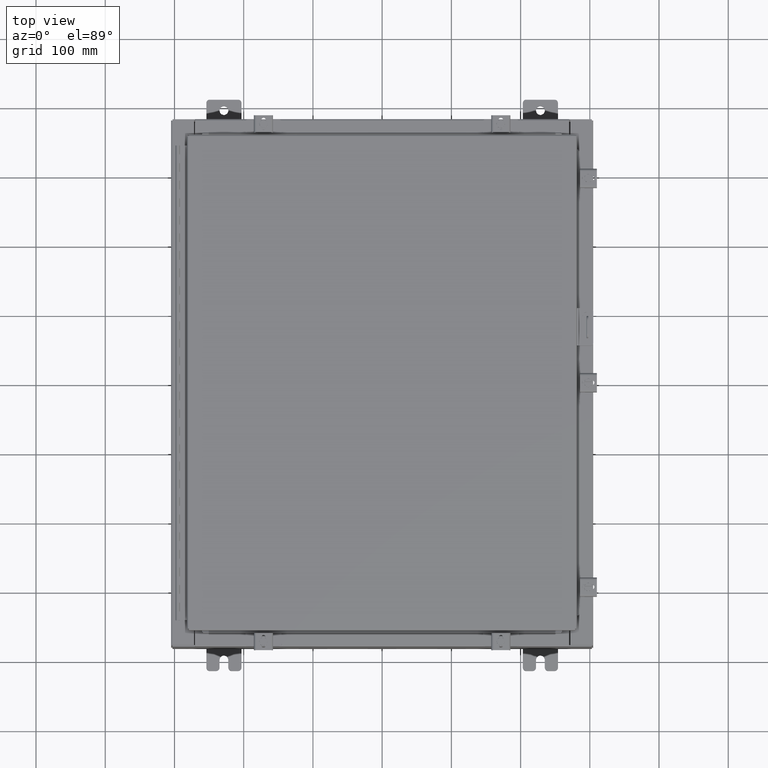
[diagram: clean part render]
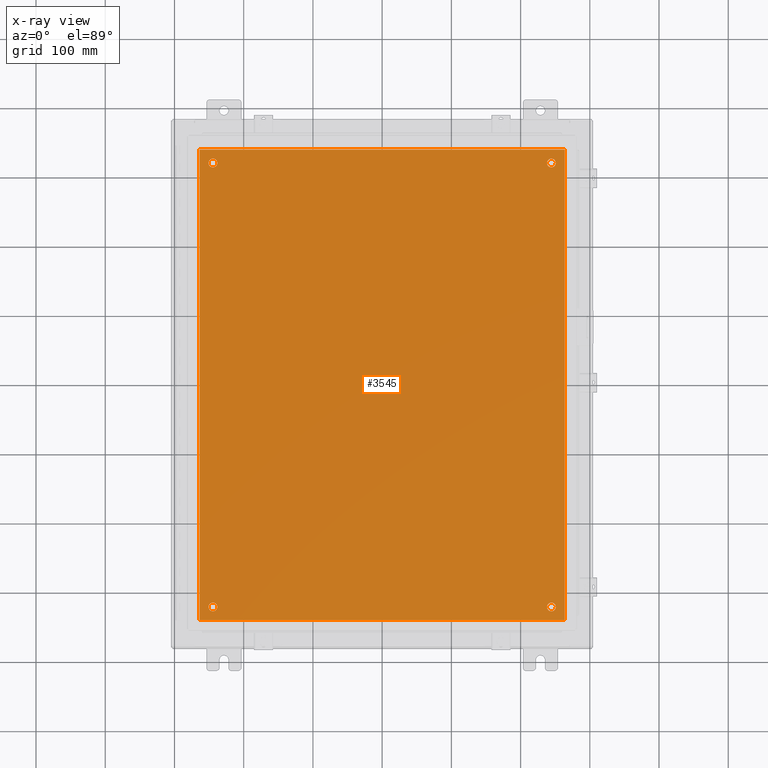
[diagram: x-ray — body ghosted, one internal face saturated and labeled with its STEP entity id]
A machine part, top view, then the same camera in x-ray: the body is ghosted and one INTERNAL B-rep face — a face not visible from any outside direction — is saturated and labeled: STEP entity #3545.
In plain terms, the highlighted planar face has unit normal (0, 0, -1).
Its self-contained STEP definition (entity closure, byte-faithful):
#119 = DIRECTION ( 'NONE',  ( -0.0000000000000000000, -0.0000000000000000000, 1.000000000000000000 ) ) ;
#156 = DIRECTION ( 'NONE',  ( 0.0000000000000000000, 1.000000000000000000, 0.0000000000000000000 ) ) ;
#510 = ORIENTED_EDGE ( 'NONE', *, *, #12319, .F. ) ;
#1007 = EDGE_CURVE ( 'NONE', #2864, #36064, #20425, .T. ) ;
#2117 = CARTESIAN_POINT ( 'NONE',  ( -9.875000000000007100, -12.62500000000000000, -0.1039999999999999800 ) ) ;
#2645 = VECTOR ( 'NONE', #35191, 39.37007874015748100 ) ;
#2864 = VERTEX_POINT ( 'NONE', #2117 ) ;
#2905 = CARTESIAN_POINT ( 'NONE',  ( 0.0000000000000000000, 0.0000000000000000000, -0.1039999999999999800 ) ) ;
#3007 = CARTESIAN_POINT ( 'NONE',  ( 9.625000000000007100, 12.62500000000000000, -0.1039999999999999800 ) ) ;
#3545 = ADVANCED_FACE ( 'NONE', ( #12959, #35305, #21619, #27524, #19776 ), #8679, .T. ) ;
#3655 = CIRCLE ( 'NONE', #3984, 0.2499999999999998100 ) ;
#3984 = AXIS2_PLACEMENT_3D ( 'NONE', #3007, #119, #17337 ) ;
#4141 = CIRCLE ( 'NONE', #22769, 0.2500000000000008900 ) ;
#4601 = EDGE_CURVE ( 'NONE', #30410, #18847, #17694, .T. ) ;
#4827 = CIRCLE ( 'NONE', #14401, 0.2499999999999998100 ) ;
#6033 = CARTESIAN_POINT ( 'NONE',  ( -9.375000000000007100, -12.62500000000000000, -0.1039999999999999800 ) ) ;
#6040 = DIRECTION ( 'NONE',  ( -1.000000000000000000, 0.0000000000000000000, 0.0000000000000000000 ) ) ;
#6370 = CARTESIAN_POINT ( 'NONE',  ( 9.375000000000007100, 12.62500000000000000, -0.1039999999999999800 ) ) ;
#6379 = CARTESIAN_POINT ( 'NONE',  ( -10.38300000000000100, -13.38299999999999900, -0.1040000000000009100 ) ) ;
#6682 = EDGE_CURVE ( 'NONE', #28825, #23216, #10316, .T. ) ;
#7020 = CARTESIAN_POINT ( 'NONE',  ( -9.625000000000007100, 12.62500000000000000, -0.1039999999999999800 ) ) ;
#7729 = AXIS2_PLACEMENT_3D ( 'NONE', #16064, #36448, #19002 ) ;
#8679 = PLANE ( 'NONE',  #15752 ) ;
#8936 = CARTESIAN_POINT ( 'NONE',  ( -9.625000000000007100, -12.62500000000000000, -0.1039999999999999800 ) ) ;
#9021 = VERTEX_POINT ( 'NONE', #10041 ) ;
#10041 = CARTESIAN_POINT ( 'NONE',  ( 10.38300000000000100, -13.38299999999999700, -0.1040000000000009100 ) ) ;
#10215 = CARTESIAN_POINT ( 'NONE',  ( 9.875000000000007100, -12.62500000000000000, -0.1039999999999999800 ) ) ;
#10316 = CIRCLE ( 'NONE', #13324, 0.2500000000000008900 ) ;
#10439 = DIRECTION ( 'NONE',  ( -0.0000000000000000000, -0.0000000000000000000, 1.000000000000000000 ) ) ;
#10691 = DIRECTION ( 'NONE',  ( -0.0000000000000000000, -0.0000000000000000000, 1.000000000000000000 ) ) ;
#10948 = CARTESIAN_POINT ( 'NONE',  ( 10.38300000000000100, 13.38299999999999700, -0.1040000000000009100 ) ) ;
#11336 = DIRECTION ( 'NONE',  ( -1.000000000000000000, -0.0000000000000000000, -0.0000000000000000000 ) ) ;
#12319 = EDGE_CURVE ( 'NONE', #9021, #23533, #22707, .T. ) ;
#12959 = FACE_BOUND ( 'NONE', #15383, .T. ) ;
#13324 = AXIS2_PLACEMENT_3D ( 'NONE', #7020, #15579, #35999 ) ;
#13640 = AXIS2_PLACEMENT_3D ( 'NONE', #33617, #29039, #21644 ) ;
#13716 = CARTESIAN_POINT ( 'NONE',  ( -10.38300000000000100, 13.38299999999999700, -0.1040000000000020100 ) ) ;
#14401 = AXIS2_PLACEMENT_3D ( 'NONE', #26449, #20696, #22653 ) ;
#14550 = ORIENTED_EDGE ( 'NONE', *, *, #36364, .T. ) ;
#15062 = CARTESIAN_POINT ( 'NONE',  ( -10.38300000000000100, 13.38299999999999700, -0.1040000000000020100 ) ) ;
#15340 = DIRECTION ( 'NONE',  ( -1.000000000000000000, 0.0000000000000000000, -0.0000000000000000000 ) ) ;
#15383 = EDGE_LOOP ( 'NONE', ( #37344, #33363 ) ) ;
#15579 = DIRECTION ( 'NONE',  ( -0.0000000000000000000, -0.0000000000000000000, 1.000000000000000000 ) ) ;
#15701 = CARTESIAN_POINT ( 'NONE',  ( -9.875000000000007100, 12.62500000000000000, -0.1039999999999999800 ) ) ;
#15752 = AXIS2_PLACEMENT_3D ( 'NONE', #2905, #18986, #15340 ) ;
#16064 = CARTESIAN_POINT ( 'NONE',  ( -9.625000000000007100, 12.62500000000000000, -0.1039999999999999800 ) ) ;
#17337 = DIRECTION ( 'NONE',  ( -1.000000000000000000, 0.0000000000000000000, 0.0000000000000000000 ) ) ;
#17498 = CARTESIAN_POINT ( 'NONE',  ( 10.38300000000000100, -13.38299999999999700, -0.1040000000000009100 ) ) ;
#17507 = VERTEX_POINT ( 'NONE', #6379 ) ;
#17694 = CIRCLE ( 'NONE', #27054, 0.2499999999999998100 ) ;
#18368 = DIRECTION ( 'NONE',  ( -1.000000000000000000, 0.0000000000000000000, 0.0000000000000000000 ) ) ;
#18570 = ORIENTED_EDGE ( 'NONE', *, *, #26526, .T. ) ;
#18847 = VERTEX_POINT ( 'NONE', #22372 ) ;
#18856 = CARTESIAN_POINT ( 'NONE',  ( 9.625000000000007100, 12.62500000000000000, -0.1039999999999999800 ) ) ;
#18986 = DIRECTION ( 'NONE',  ( 0.0000000000000000000, 0.0000000000000000000, -1.000000000000000000 ) ) ;
#19002 = DIRECTION ( 'NONE',  ( -1.000000000000000000, 0.0000000000000000000, 0.0000000000000000000 ) ) ;
#19413 = ORIENTED_EDGE ( 'NONE', *, *, #25807, .F. ) ;
#19776 = FACE_OUTER_BOUND ( 'NONE', #21051, .T. ) ;
#20425 = CIRCLE ( 'NONE', #13640, 0.2500000000000008900 ) ;
#20696 = DIRECTION ( 'NONE',  ( -0.0000000000000000000, -0.0000000000000000000, 1.000000000000000000 ) ) ;
#20745 = EDGE_LOOP ( 'NONE', ( #37021, #23835 ) ) ;
#20872 = VECTOR ( 'NONE', #156, 39.37007874015748100 ) ;
#21051 = EDGE_LOOP ( 'NONE', ( #19413, #24703, #28255, #510 ) ) ;
#21619 = FACE_BOUND ( 'NONE', #20745, .T. ) ;
#21644 = DIRECTION ( 'NONE',  ( -1.000000000000000000, 0.0000000000000000000, 0.0000000000000000000 ) ) ;
#22091 = CARTESIAN_POINT ( 'NONE',  ( -9.375000000000007100, 12.62500000000000000, -0.1039999999999999800 ) ) ;
#22222 = VERTEX_POINT ( 'NONE', #35686 ) ;
#22372 = CARTESIAN_POINT ( 'NONE',  ( 9.875000000000007100, 12.62500000000000000, -0.1039999999999999800 ) ) ;
#22653 = DIRECTION ( 'NONE',  ( -1.000000000000000000, 0.0000000000000000000, 0.0000000000000000000 ) ) ;
#22707 = LINE ( 'NONE', #17498, #20872 ) ;
#22769 = AXIS2_PLACEMENT_3D ( 'NONE', #8936, #26308, #6040 ) ;
#23216 = VERTEX_POINT ( 'NONE', #22091 ) ;
#23513 = EDGE_CURVE ( 'NONE', #23533, #33881, #34316, .T. ) ;
#23533 = VERTEX_POINT ( 'NONE', #10948 ) ;
#23835 = ORIENTED_EDGE ( 'NONE', *, *, #4601, .T. ) ;
#24496 = CIRCLE ( 'NONE', #33379, 0.2499999999999998100 ) ;
#24518 = VECTOR ( 'NONE', #34114, 39.37007874015748100 ) ;
#24703 = ORIENTED_EDGE ( 'NONE', *, *, #29816, .F. ) ;
#24835 = VERTEX_POINT ( 'NONE', #10215 ) ;
#25721 = LINE ( 'NONE', #26395, #2645 ) ;
#25807 = EDGE_CURVE ( 'NONE', #17507, #9021, #25721, .T. ) ;
#26308 = DIRECTION ( 'NONE',  ( -0.0000000000000000000, -0.0000000000000000000, 1.000000000000000000 ) ) ;
#26395 = CARTESIAN_POINT ( 'NONE',  ( -10.50000000000000200, -13.38299999999999900, -0.1040000000000009100 ) ) ;
#26449 = CARTESIAN_POINT ( 'NONE',  ( 9.625000000000007100, -12.62500000000000000, -0.1039999999999999800 ) ) ;
#26526 = EDGE_CURVE ( 'NONE', #22222, #24835, #4827, .T. ) ;
#26581 = VECTOR ( 'NONE', #11336, 39.37007874015748100 ) ;
#26816 = EDGE_LOOP ( 'NONE', ( #14550, #32596 ) ) ;
#27054 = AXIS2_PLACEMENT_3D ( 'NONE', #18856, #10439, #18368 ) ;
#27524 = FACE_BOUND ( 'NONE', #26816, .T. ) ;
#27598 = EDGE_LOOP ( 'NONE', ( #30955, #18570 ) ) ;
#28255 = ORIENTED_EDGE ( 'NONE', *, *, #23513, .F. ) ;
#28825 = VERTEX_POINT ( 'NONE', #15701 ) ;
#29039 = DIRECTION ( 'NONE',  ( -0.0000000000000000000, -0.0000000000000000000, 1.000000000000000000 ) ) ;
#29816 = EDGE_CURVE ( 'NONE', #33881, #17507, #33216, .T. ) ;
#30410 = VERTEX_POINT ( 'NONE', #6370 ) ;
#30522 = EDGE_CURVE ( 'NONE', #18847, #30410, #3655, .T. ) ;
#30955 = ORIENTED_EDGE ( 'NONE', *, *, #31086, .T. ) ;
#31057 = CARTESIAN_POINT ( 'NONE',  ( 9.625000000000007100, -12.62500000000000000, -0.1039999999999999800 ) ) ;
#31086 = EDGE_CURVE ( 'NONE', #24835, #22222, #24496, .T. ) ;
#31729 = CARTESIAN_POINT ( 'NONE',  ( 10.50000000000000400, 13.38299999999999900, -0.1040000000000009100 ) ) ;
#32450 = EDGE_CURVE ( 'NONE', #36064, #2864, #4141, .T. ) ;
#32596 = ORIENTED_EDGE ( 'NONE', *, *, #6682, .T. ) ;
#32925 = CIRCLE ( 'NONE', #7729, 0.2500000000000008900 ) ;
#33216 = LINE ( 'NONE', #13716, #24518 ) ;
#33363 = ORIENTED_EDGE ( 'NONE', *, *, #1007, .T. ) ;
#33379 = AXIS2_PLACEMENT_3D ( 'NONE', #31057, #10691, #33976 ) ;
#33617 = CARTESIAN_POINT ( 'NONE',  ( -9.625000000000007100, -12.62500000000000000, -0.1039999999999999800 ) ) ;
#33881 = VERTEX_POINT ( 'NONE', #15062 ) ;
#33976 = DIRECTION ( 'NONE',  ( -1.000000000000000000, 0.0000000000000000000, 0.0000000000000000000 ) ) ;
#34114 = DIRECTION ( 'NONE',  ( 0.0000000000000000000, -1.000000000000000000, 0.0000000000000000000 ) ) ;
#34316 = LINE ( 'NONE', #31729, #26581 ) ;
#35191 = DIRECTION ( 'NONE',  ( 1.000000000000000000, -0.0000000000000000000, -0.0000000000000000000 ) ) ;
#35305 = FACE_BOUND ( 'NONE', #27598, .T. ) ;
#35686 = CARTESIAN_POINT ( 'NONE',  ( 9.375000000000007100, -12.62500000000000000, -0.1039999999999999800 ) ) ;
#35999 = DIRECTION ( 'NONE',  ( -1.000000000000000000, 0.0000000000000000000, 0.0000000000000000000 ) ) ;
#36064 = VERTEX_POINT ( 'NONE', #6033 ) ;
#36364 = EDGE_CURVE ( 'NONE', #23216, #28825, #32925, .T. ) ;
#36448 = DIRECTION ( 'NONE',  ( -0.0000000000000000000, -0.0000000000000000000, 1.000000000000000000 ) ) ;
#37021 = ORIENTED_EDGE ( 'NONE', *, *, #30522, .T. ) ;
#37344 = ORIENTED_EDGE ( 'NONE', *, *, #32450, .T. ) ;